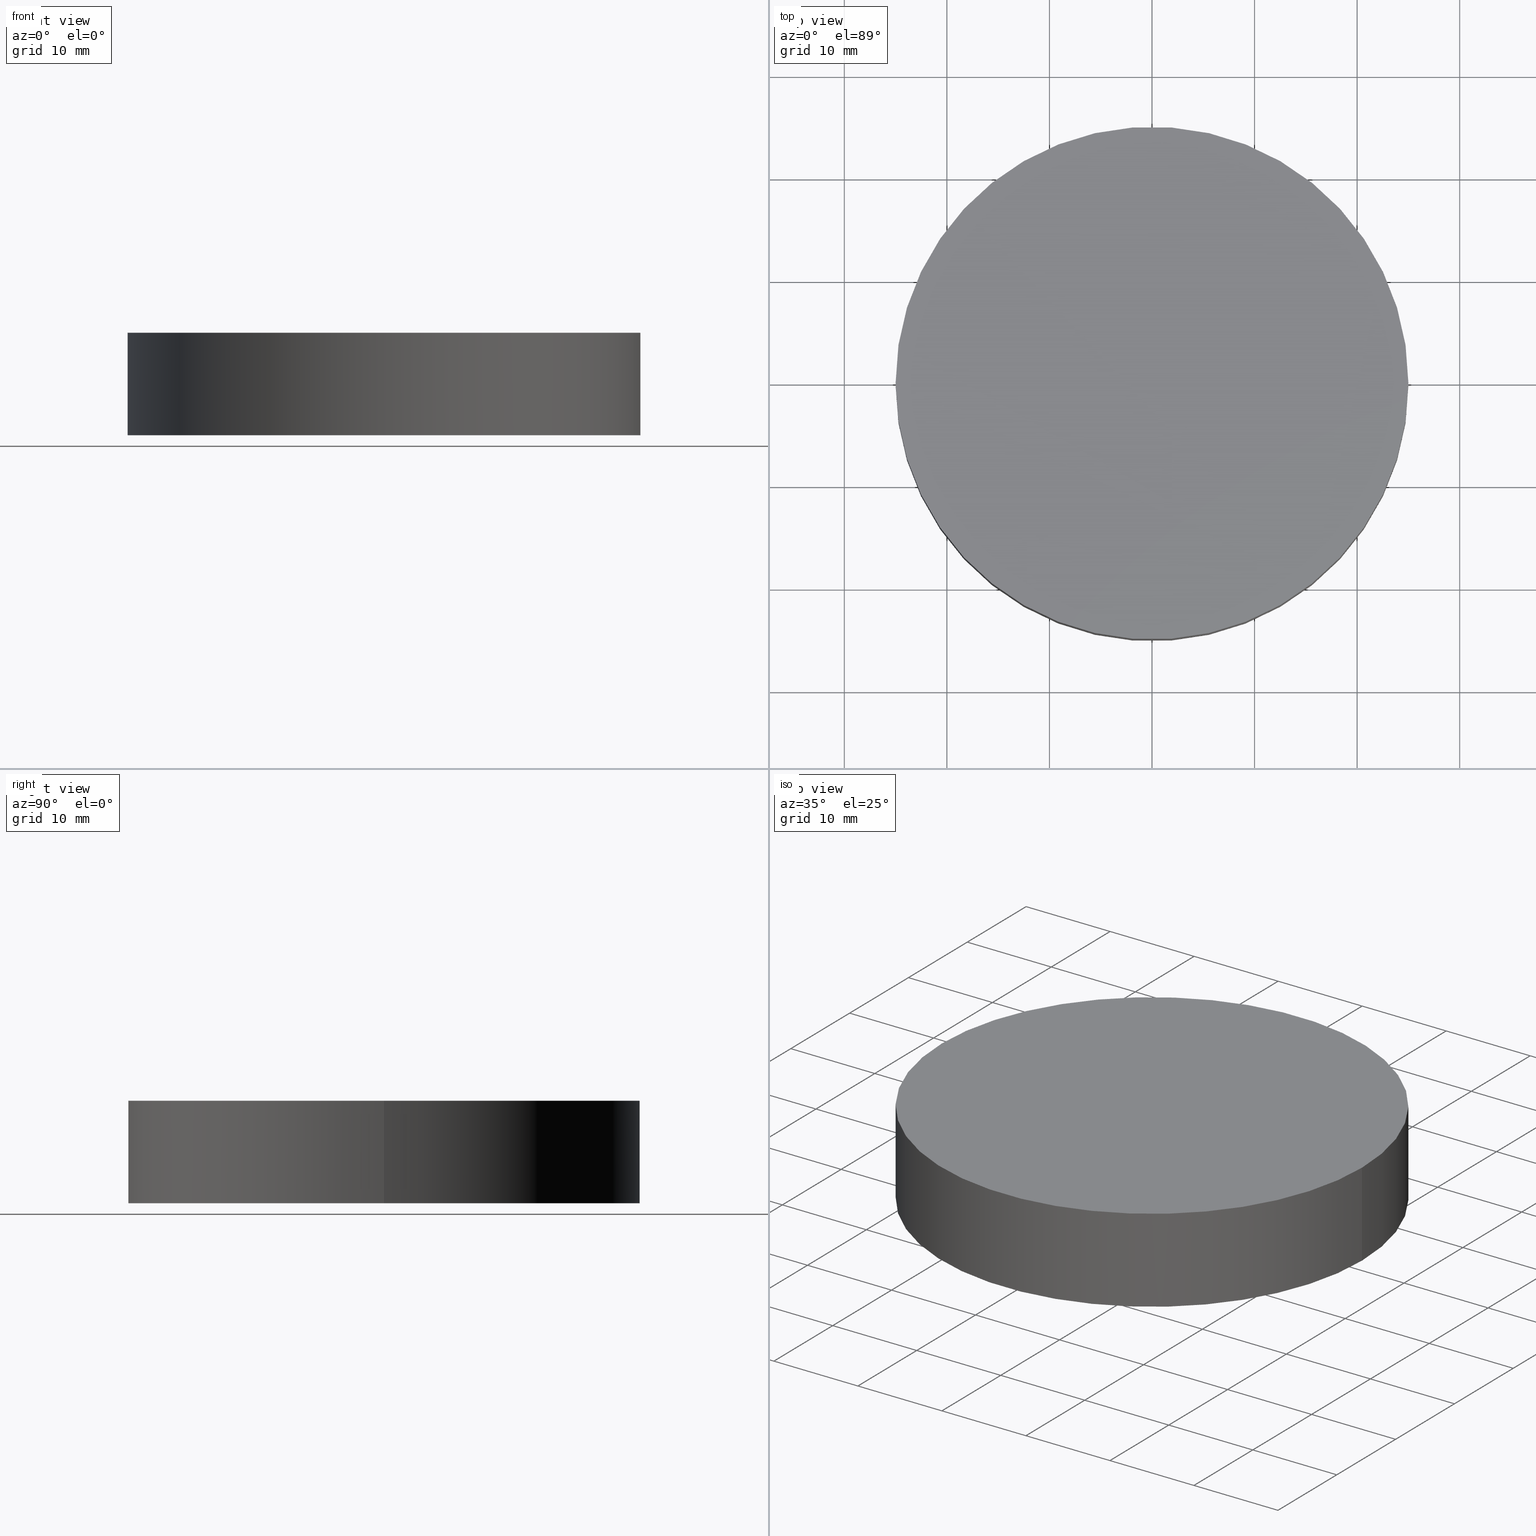
[diagram: canonical four-view strip — front | top / right | iso, engineering-drawing reading convention]
A machine part, canonical four-view strip (front | top / right | iso — engineering-drawing reading convention). The complete STEP part file that produces these views, byte-faithful:
ISO-10303-21;
HEADER;
FILE_DESCRIPTION (( 'STEP AP214' ),
    '1' );
FILE_NAME ('190064.STEP',
    '2019-07-16T03:48:33',
    ( 'user' ),
    ( '΢���й�' ),
    'SwSTEP 2.0',
    'SolidWorks 2016',
    '' );
FILE_SCHEMA (( 'AUTOMOTIVE_DESIGN' ));
ENDSEC;

DATA;
#1 = CYLINDRICAL_SURFACE ( 'NONE', #15, 25.00000000000000000 ) ;
#2 = MECHANICAL_DESIGN_GEOMETRIC_PRESENTATION_REPRESENTATION (  '', ( #126 ), #7 ) ;
#3 = FILL_AREA_STYLE_COLOUR ( '', #129 ) ;
#4 = PRODUCT_DEFINITION_SHAPE ( 'NONE', 'NONE',  #36 ) ;
#5 = CIRCLE ( 'NONE', #58, 25.00000000000000000 ) ;
#6 = DIRECTION ( 'NONE',  ( 0.0000000000000000000, 0.0000000000000000000, 1.000000000000000000 ) ) ;
#7 =( GEOMETRIC_REPRESENTATION_CONTEXT ( 3 ) GLOBAL_UNCERTAINTY_ASSIGNED_CONTEXT ( ( #19 ) ) GLOBAL_UNIT_ASSIGNED_CONTEXT ( ( #124, #11, #63 ) ) REPRESENTATION_CONTEXT ( 'NONE', 'WORKASPACE' ) );
#8 = PLANE ( 'NONE',  #107 ) ;
#9 = PRESENTATION_LAYER_ASSIGNMENT (  '', '', ( #127 ) ) ;
#10 = UNCERTAINTY_MEASURE_WITH_UNIT (LENGTH_MEASURE( 1.000000000000000100E-005 ), #123, 'distance_accuracy_value', 'NONE');
#11 =( NAMED_UNIT ( * ) PLANE_ANGLE_UNIT ( ) SI_UNIT ( $, .RADIAN. ) );
#12 = SURFACE_SIDE_STYLE ('',( #44 ) ) ;
#13 = PRESENTATION_STYLE_ASSIGNMENT (( #101 ) ) ;
#14 =( GEOMETRIC_REPRESENTATION_CONTEXT ( 3 ) GLOBAL_UNCERTAINTY_ASSIGNED_CONTEXT ( ( #10 ) ) GLOBAL_UNIT_ASSIGNED_CONTEXT ( ( #123, #135, #56 ) ) REPRESENTATION_CONTEXT ( 'NONE', 'WORKASPACE' ) );
#15 = AXIS2_PLACEMENT_3D ( 'NONE', #95, #68, #92 ) ;
#16 = PLANE ( 'NONE',  #78 ) ;
#17 = CLOSED_SHELL ( 'NONE', ( #82, #64, #89, #98 ) ) ;
#18 = DIRECTION ( 'NONE',  ( 0.0000000000000000000, 0.0000000000000000000, 1.000000000000000000 ) ) ;
#19 = UNCERTAINTY_MEASURE_WITH_UNIT (LENGTH_MEASURE( 1.000000000000000100E-005 ), #124, 'distance_accuracy_value', 'NONE');
#20 = CARTESIAN_POINT ( 'NONE',  ( 0.0000000000000000000, 0.0000000000000000000, 0.0000000000000000000 ) ) ;
#21 = ORIENTED_EDGE ( 'NONE', *, *, #23, .F. ) ;
#22 = CARTESIAN_POINT ( 'NONE',  ( 0.0000000000000000000, 0.0000000000000000000, 10.00000000000000000 ) ) ;
#23 = EDGE_CURVE ( 'NONE', #91, #111, #5, .T. ) ;
#24 = PRESENTATION_STYLE_ASSIGNMENT (( #67 ) ) ;
#25 = EDGE_LOOP ( 'NONE', ( #100, #75, #66, #103 ) ) ;
#26 = FACE_OUTER_BOUND ( 'NONE', #70, .T. ) ;
#27 = CARTESIAN_POINT ( 'NONE',  ( 25.00000000000000000, 3.061616997868383000E-015, 10.00000000000000000 ) ) ;
#28 = CIRCLE ( 'NONE', #97, 25.00000000000000000 ) ;
#29 = DIRECTION ( 'NONE',  ( -1.000000000000000000, 0.0000000000000000000, 0.0000000000000000000 ) ) ;
#30 =( LENGTH_UNIT ( ) NAMED_UNIT ( * ) SI_UNIT ( .MILLI., .METRE. ) );
#31 = AXIS2_PLACEMENT_3D ( 'NONE', #112, #110, #29 ) ;
#32 = LINE ( 'NONE', #81, #79 ) ;
#33 = DIRECTION ( 'NONE',  ( 1.000000000000000000, 0.0000000000000000000, 0.0000000000000000000 ) ) ;
#34 = AXIS2_PLACEMENT_3D ( 'NONE', #93, #40, #33 ) ;
#35 = CARTESIAN_POINT ( 'NONE',  ( 0.0000000000000000000, 0.0000000000000000000, 10.00000000000000000 ) ) ;
#36 = PRODUCT_DEFINITION ( 'δ֪', '', #85, #105 ) ;
#37 = DIRECTION ( 'NONE',  ( -0.0000000000000000000, -0.0000000000000000000, -1.000000000000000000 ) ) ;
#38 = APPLICATION_CONTEXT ( 'automotive_design' ) ;
#39 = ORIENTED_EDGE ( 'NONE', *, *, #62, .T. ) ;
#40 = DIRECTION ( 'NONE',  ( 0.0000000000000000000, 0.0000000000000000000, 1.000000000000000000 ) ) ;
#41 = APPLICATION_PROTOCOL_DEFINITION ( 'draft international standard', 'automotive_design', 1998, #38 ) ;
#42 = CARTESIAN_POINT ( 'NONE',  ( 0.0000000000000000000, 0.0000000000000000000, 10.00000000000000000 ) ) ;
#43 = ORIENTED_EDGE ( 'NONE', *, *, #96, .T. ) ;
#44 = SURFACE_STYLE_FILL_AREA ( #46 ) ;
#45 = EDGE_LOOP ( 'NONE', ( #130, #21 ) ) ;
#46 = FILL_AREA_STYLE ('',( #3 ) ) ;
#47 = CARTESIAN_POINT ( 'NONE',  ( -25.00000000000000000, 0.0000000000000000000, 10.00000000000000000 ) ) ;
#48 =( NAMED_UNIT ( * ) PLANE_ANGLE_UNIT ( ) SI_UNIT ( $, .RADIAN. ) );
#49 = SURFACE_STYLE_FILL_AREA ( #72 ) ;
#50 = CARTESIAN_POINT ( 'NONE',  ( -25.00000000000000000, 0.0000000000000000000, 0.0000000000000000000 ) ) ;
#51 = VERTEX_POINT ( 'NONE', #47 ) ;
#52 = CARTESIAN_POINT ( 'NONE',  ( 0.0000000000000000000, 0.0000000000000000000, 0.0000000000000000000 ) ) ;
#53 = FACE_OUTER_BOUND ( 'NONE', #25, .T. ) ;
#54 = COLOUR_RGB ( '',1.000000000000000000, 1.000000000000000000, 1.000000000000000000 ) ;
#55 = FACE_OUTER_BOUND ( 'NONE', #45, .T. ) ;
#56 =( NAMED_UNIT ( * ) SI_UNIT ( $, .STERADIAN. ) SOLID_ANGLE_UNIT ( ) );
#57 = CARTESIAN_POINT ( 'NONE',  ( 25.00000000000000000, 3.061616997868383000E-015, 0.0000000000000000000 ) ) ;
#58 = AXIS2_PLACEMENT_3D ( 'NONE', #138, #118, #125 ) ;
#59 = APPLICATION_PROTOCOL_DEFINITION ( 'draft international standard', 'automotive_design', 1998, #134 ) ;
#60 = DIRECTION ( 'NONE',  ( 0.0000000000000000000, 0.0000000000000000000, 1.000000000000000000 ) ) ;
#61 = VERTEX_POINT ( 'NONE', #27 ) ;
#62 = EDGE_CURVE ( 'NONE', #51, #111, #32, .T. ) ;
#63 =( NAMED_UNIT ( * ) SI_UNIT ( $, .STERADIAN. ) SOLID_ANGLE_UNIT ( ) );
#64 = ADVANCED_FACE ( 'NONE', ( #113 ), #1, .T. ) ;
#65 = DIRECTION ( 'NONE',  ( 1.000000000000000000, 0.0000000000000000000, -0.0000000000000000000 ) ) ;
#66 = ORIENTED_EDGE ( 'NONE', *, *, #23, .T. ) ;
#67 = SURFACE_STYLE_USAGE ( .BOTH. , #122 ) ;
#68 = DIRECTION ( 'NONE',  ( -0.0000000000000000000, -0.0000000000000000000, -1.000000000000000000 ) ) ;
#69 = AXIS2_PLACEMENT_3D ( 'NONE', #35, #84, #80 ) ;
#70 = EDGE_LOOP ( 'NONE', ( #87, #43 ) ) ;
#71 = CYLINDRICAL_SURFACE ( 'NONE', #31, 25.00000000000000000 ) ;
#72 = FILL_AREA_STYLE ('',( #76 ) ) ;
#73 =( NAMED_UNIT ( * ) SI_UNIT ( $, .STERADIAN. ) SOLID_ANGLE_UNIT ( ) );
#74 = CIRCLE ( 'NONE', #69, 25.00000000000000000 ) ;
#75 = ORIENTED_EDGE ( 'NONE', *, *, #77, .T. ) ;
#76 = FILL_AREA_STYLE_COLOUR ( '', #54 ) ;
#77 = EDGE_CURVE ( 'NONE', #61, #91, #119, .T. ) ;
#78 = AXIS2_PLACEMENT_3D ( 'NONE', #42, #128, #65 ) ;
#79 = VECTOR ( 'NONE', #37, 1000.000000000000000 ) ;
#80 = DIRECTION ( 'NONE',  ( 1.000000000000000000, 0.0000000000000000000, 0.0000000000000000000 ) ) ;
#81 = CARTESIAN_POINT ( 'NONE',  ( -25.00000000000000000, 0.0000000000000000000, 10.00000000000000000 ) ) ;
#82 = ADVANCED_FACE ( 'NONE', ( #53 ), #71, .T. ) ;
#83 = MANIFOLD_SOLID_BREP ( '͹̨-����1', #17 ) ;
#84 = DIRECTION ( 'NONE',  ( 0.0000000000000000000, 0.0000000000000000000, 1.000000000000000000 ) ) ;
#85 = PRODUCT_DEFINITION_FORMATION_WITH_SPECIFIED_SOURCE ( '�κ�', '', #108, .NOT_KNOWN. ) ;
#86 = EDGE_CURVE ( 'NONE', #111, #91, #116, .T. ) ;
#87 = ORIENTED_EDGE ( 'NONE', *, *, #132, .T. ) ;
#88 = SHAPE_DEFINITION_REPRESENTATION ( #4, #114 ) ;
#89 = ADVANCED_FACE ( 'NONE', ( #26 ), #16, .T. ) ;
#90 = DIRECTION ( 'NONE',  ( 1.000000000000000000, 0.0000000000000000000, 0.0000000000000000000 ) ) ;
#91 = VERTEX_POINT ( 'NONE', #57 ) ;
#92 = DIRECTION ( 'NONE',  ( -1.000000000000000000, 0.0000000000000000000, 0.0000000000000000000 ) ) ;
#93 = CARTESIAN_POINT ( 'NONE',  ( 0.0000000000000000000, 0.0000000000000000000, 0.0000000000000000000 ) ) ;
#94 = PRODUCT_RELATED_PRODUCT_CATEGORY ( 'part', '', ( #108 ) ) ;
#95 = CARTESIAN_POINT ( 'NONE',  ( 0.0000000000000000000, 0.0000000000000000000, 10.00000000000000000 ) ) ;
#96 = EDGE_CURVE ( 'NONE', #61, #51, #74, .T. ) ;
#97 = AXIS2_PLACEMENT_3D ( 'NONE', #22, #6, #106 ) ;
#98 = ADVANCED_FACE ( 'NONE', ( #55 ), #8, .F. ) ;
#99 = UNCERTAINTY_MEASURE_WITH_UNIT (LENGTH_MEASURE( 1.000000000000000100E-005 ), #30, 'distance_accuracy_value', 'NONE');
#100 = ORIENTED_EDGE ( 'NONE', *, *, #96, .F. ) ;
#101 = SURFACE_STYLE_USAGE ( .BOTH. , #12 ) ;
#102 = DIRECTION ( 'NONE',  ( 1.000000000000000000, 0.0000000000000000000, -0.0000000000000000000 ) ) ;
#103 = ORIENTED_EDGE ( 'NONE', *, *, #62, .F. ) ;
#104 = PRODUCT_CONTEXT ( 'NONE', #134, 'mechanical' ) ;
#105 = PRODUCT_DEFINITION_CONTEXT ( 'detailed design', #38, 'design' ) ;
#106 = DIRECTION ( 'NONE',  ( 1.000000000000000000, 0.0000000000000000000, 0.0000000000000000000 ) ) ;
#107 = AXIS2_PLACEMENT_3D ( 'NONE', #20, #18, #102 ) ;
#108 = PRODUCT ( '190064', '190064', '', ( #104 ) ) ;
#109 = MECHANICAL_DESIGN_GEOMETRIC_PRESENTATION_REPRESENTATION (  '', ( #127 ), #14 ) ;
#110 = DIRECTION ( 'NONE',  ( -0.0000000000000000000, -0.0000000000000000000, -1.000000000000000000 ) ) ;
#111 = VERTEX_POINT ( 'NONE', #50 ) ;
#112 = CARTESIAN_POINT ( 'NONE',  ( 0.0000000000000000000, 0.0000000000000000000, 10.00000000000000000 ) ) ;
#113 = FACE_OUTER_BOUND ( 'NONE', #115, .T. ) ;
#114 = ADVANCED_BREP_SHAPE_REPRESENTATION ( '190064', ( #83, #34 ), #117 ) ;
#115 = EDGE_LOOP ( 'NONE', ( #136, #140, #39, #121 ) ) ;
#116 = CIRCLE ( 'NONE', #131, 25.00000000000000000 ) ;
#117 =( GEOMETRIC_REPRESENTATION_CONTEXT ( 3 ) GLOBAL_UNCERTAINTY_ASSIGNED_CONTEXT ( ( #99 ) ) GLOBAL_UNIT_ASSIGNED_CONTEXT ( ( #30, #48, #73 ) ) REPRESENTATION_CONTEXT ( 'NONE', 'WORKASPACE' ) );
#118 = DIRECTION ( 'NONE',  ( 0.0000000000000000000, 0.0000000000000000000, 1.000000000000000000 ) ) ;
#119 = LINE ( 'NONE', #120, #139 ) ;
#120 = CARTESIAN_POINT ( 'NONE',  ( 25.00000000000000000, 3.061616997868383000E-015, 10.00000000000000000 ) ) ;
#121 = ORIENTED_EDGE ( 'NONE', *, *, #86, .T. ) ;
#122 = SURFACE_SIDE_STYLE ('',( #49 ) ) ;
#123 =( LENGTH_UNIT ( ) NAMED_UNIT ( * ) SI_UNIT ( .MILLI., .METRE. ) );
#124 =( LENGTH_UNIT ( ) NAMED_UNIT ( * ) SI_UNIT ( .MILLI., .METRE. ) );
#125 = DIRECTION ( 'NONE',  ( 1.000000000000000000, 0.0000000000000000000, 0.0000000000000000000 ) ) ;
#126 = STYLED_ITEM ( 'NONE', ( #13 ), #114 ) ;
#127 = STYLED_ITEM ( 'NONE', ( #24 ), #83 ) ;
#128 = DIRECTION ( 'NONE',  ( 0.0000000000000000000, 0.0000000000000000000, 1.000000000000000000 ) ) ;
#129 = COLOUR_RGB ( '',1.000000000000000000, 1.000000000000000000, 1.000000000000000000 ) ;
#130 = ORIENTED_EDGE ( 'NONE', *, *, #86, .F. ) ;
#131 = AXIS2_PLACEMENT_3D ( 'NONE', #52, #60, #90 ) ;
#132 = EDGE_CURVE ( 'NONE', #51, #61, #28, .T. ) ;
#133 = PRESENTATION_LAYER_ASSIGNMENT (  '', '', ( #126 ) ) ;
#134 = APPLICATION_CONTEXT ( 'automotive_design' ) ;
#135 =( NAMED_UNIT ( * ) PLANE_ANGLE_UNIT ( ) SI_UNIT ( $, .RADIAN. ) );
#136 = ORIENTED_EDGE ( 'NONE', *, *, #77, .F. ) ;
#137 = DIRECTION ( 'NONE',  ( -0.0000000000000000000, -0.0000000000000000000, -1.000000000000000000 ) ) ;
#138 = CARTESIAN_POINT ( 'NONE',  ( 0.0000000000000000000, 0.0000000000000000000, 0.0000000000000000000 ) ) ;
#139 = VECTOR ( 'NONE', #137, 1000.000000000000000 ) ;
#140 = ORIENTED_EDGE ( 'NONE', *, *, #132, .F. ) ;
ENDSEC;
END-ISO-10303-21;
